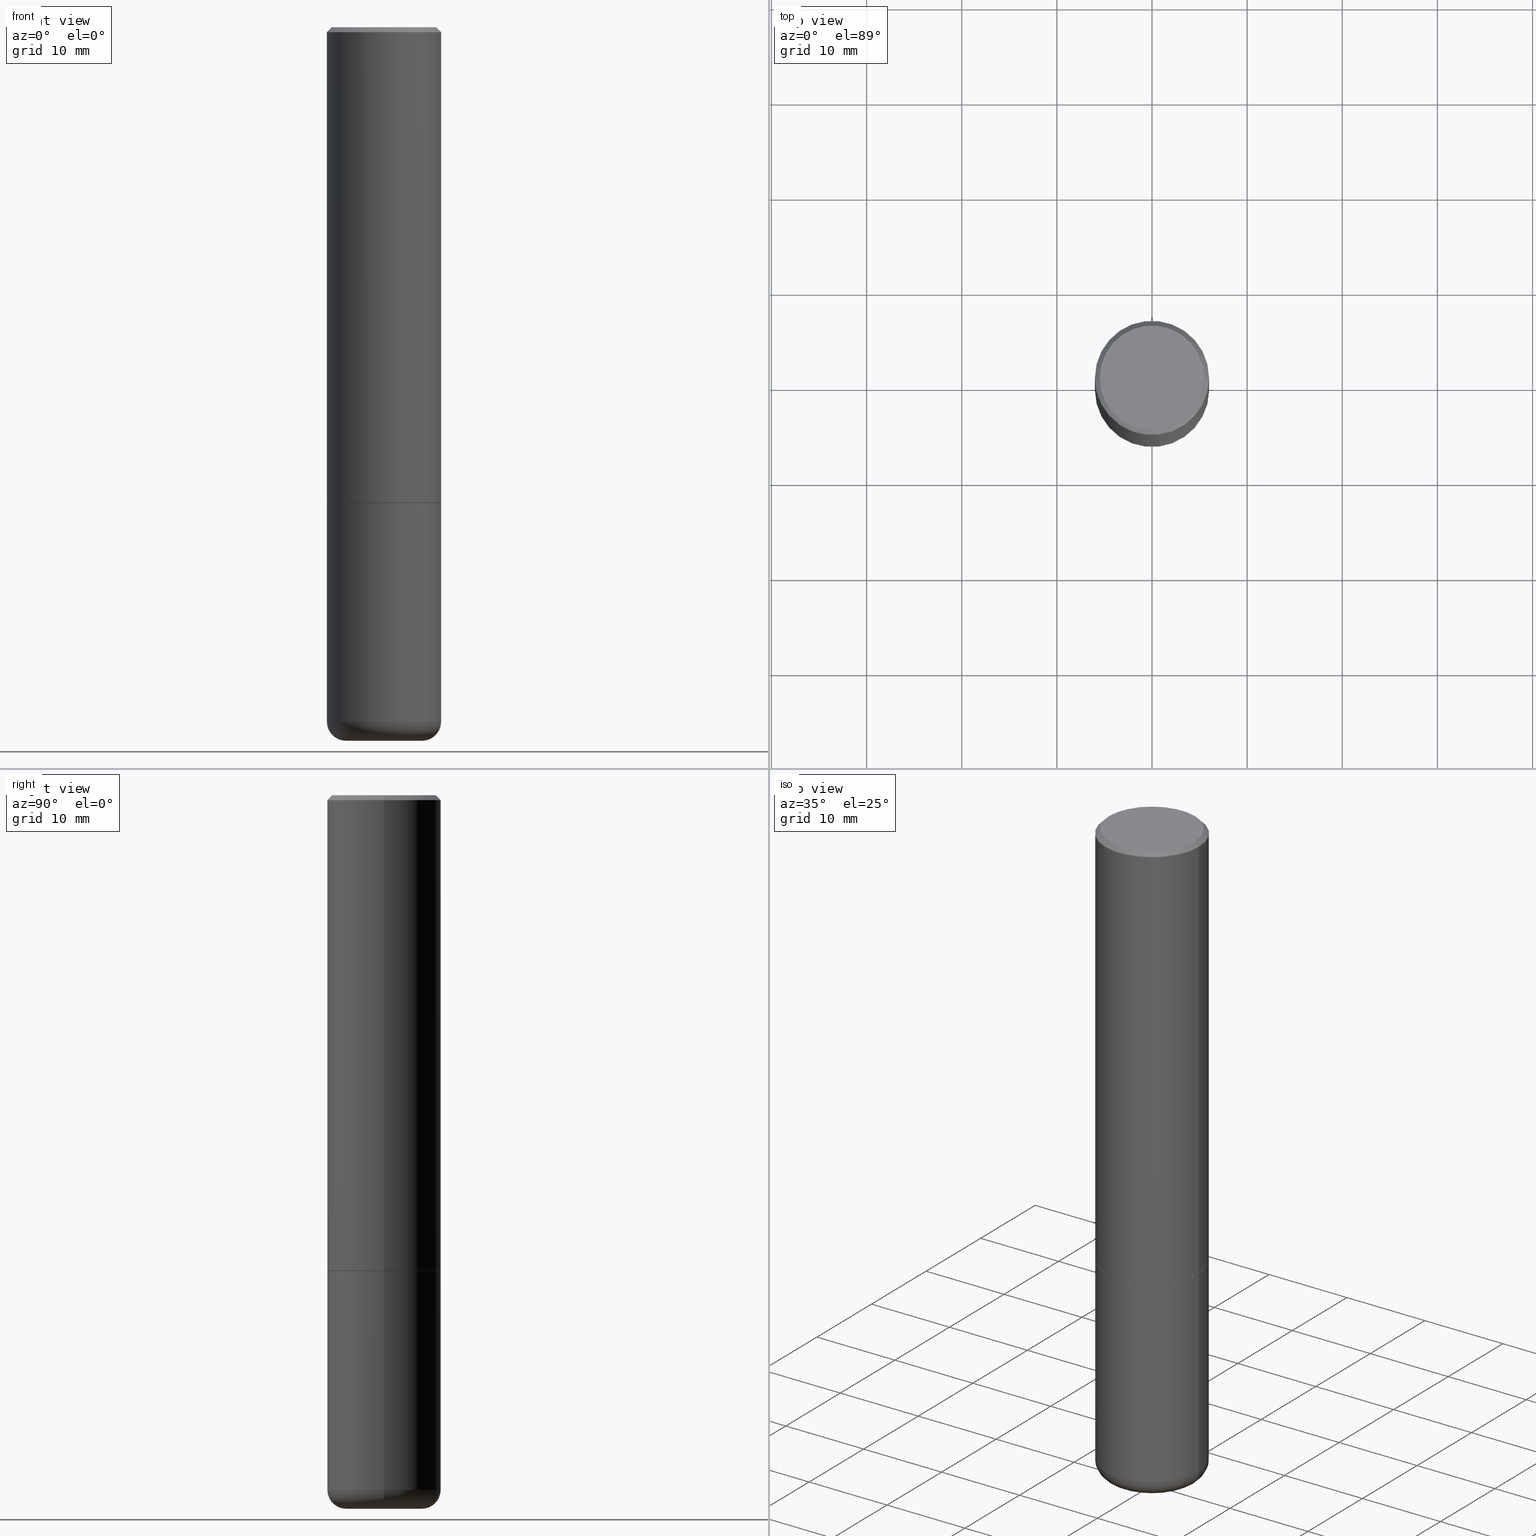
[diagram: canonical four-view strip — front | top / right | iso, engineering-drawing reading convention]
A machine part, canonical four-view strip (front | top / right | iso — engineering-drawing reading convention). The complete STEP part file that produces these views, byte-faithful:
ISO-10303-21;
HEADER;
FILE_DESCRIPTION (( 'STEP AP203' ),
    '1' );
FILE_NAME ('42683.STEP',
    '2024-03-04T01:27:10',
    ( '' ),
    ( '' ),
    'SwSTEP 2.0',
    'SolidWorks 2023',
    '' );
FILE_SCHEMA (( 'CONFIG_CONTROL_DESIGN' ));
ENDSEC;

DATA;
#1 = DIRECTION ( 'NONE',  ( 0.7071067811866078578, -2.468850131082888544E-15, 0.7071067811864871766 ) ) ;
#2 = AXIS2_PLACEMENT_3D ( 'NONE', #147, #84, #40 ) ;
#3 = ORIENTED_EDGE ( 'NONE', *, *, #385, .T. ) ;
#4 = DATE_AND_TIME ( #282, #222 ) ;
#5 = DIRECTION ( 'NONE',  ( -2.445468806185136597E-29, 3.491481338843145583E-15, 1.000000000000000000 ) ) ;
#6 = VECTOR ( 'NONE', #168, 39.37007874015748143 ) ;
#7 = CIRCLE ( 'NONE', #409, 0.07869999999999993667 ) ;
#8 = ORIENTED_EDGE ( 'NONE', *, *, #29, .T. ) ;
#9 = DIRECTION ( 'NONE',  ( -2.445468806185136597E-29, 3.491481338843145583E-15, 1.000000000000000000 ) ) ;
#10 = DATE_AND_TIME ( #284, #311 ) ;
#11 = DIRECTION ( 'NONE',  ( 1.000000000000000000, -6.982962677686268288E-15, 0.000000000000000000 ) ) ;
#12 = CARTESIAN_POINT ( 'NONE',  ( -0.2362000000000001321, 1.678301941865357577E-15, -1.161852468318209457E-29 ) ) ;
#13 = AXIS2_PLACEMENT_3D ( 'NONE', #320, #5, #124 ) ;
#14 = CARTESIAN_POINT ( 'NONE',  ( 1.509716530915769140E-15, 0.2161999999999997535, -6.353399157350757782E-16 ) ) ;
#15 = DIRECTION ( 'NONE',  ( -1.000000000000000000, 6.982962677686265922E-15, -4.876176775795935793E-29 ) ) ;
#16 = ORIENTED_EDGE ( 'NONE', *, *, #279, .F. ) ;
#17 = EDGE_CURVE ( 'NONE', #175, #137, #136, .T. ) ;
#18 = DIRECTION ( 'NONE',  ( 2.438088387897960049E-29, -3.491481338843145188E-15, -1.000000000000000000 ) ) ;
#19 = AXIS2_PLACEMENT_3D ( 'NONE', #22, #380, #86 ) ;
#20 = CARTESIAN_POINT ( 'NONE',  ( 4.813905344975440714E-29, -6.872981015512730918E-15, -1.968499999999999694 ) ) ;
#21 =( LENGTH_UNIT ( ) NAMED_UNIT ( * ) SI_UNIT ( $, .METRE. ) );
#22 = CARTESIAN_POINT ( 'NONE',  ( 0.000000000000000000, 0.000000000000000000, 0.000000000000000000 ) ) ;
#23 = CARTESIAN_POINT ( 'NONE',  ( 0.000000000000000000, 0.000000000000000000, 0.000000000000000000 ) ) ;
#24 = VERTEX_POINT ( 'NONE', #294 ) ;
#25 = FACE_OUTER_BOUND ( 'NONE', #317, .T. ) ;
#26 = CIRCLE ( 'NONE', #117, 0.2361999999999999933 ) ;
#27 = DIRECTION ( 'NONE',  ( -2.445468806185136877E-29, 3.491481338843145188E-15, 1.000000000000000000 ) ) ;
#28 = ORIENTED_EDGE ( 'NONE', *, *, #17, .F. ) ;
#29 = EDGE_CURVE ( 'NONE', #24, #391, #145, .T. ) ;
#30 = EDGE_LOOP ( 'NONE', ( #78, #94, #156, #181 ) ) ;
#31 = DIRECTION ( 'NONE',  ( 1.000000000000000000, -6.982962677686266711E-15, 0.000000000000000000 ) ) ;
#32 = ADVANCED_FACE ( 'NONE', ( #355 ), #106, .T. ) ;
#33 = APPROVAL_STATUS ( 'not_yet_approved' ) ;
#34 = CIRCLE ( 'NONE', #199, 0.07869999999999993667 ) ;
#35 = DIRECTION ( 'NONE',  ( -2.445468806185136597E-29, 3.491481338843145583E-15, 1.000000000000000000 ) ) ;
#36 = CONICAL_SURFACE ( 'NONE', #304, 0.2351999999999999924, 0.7853981633975336552 ) ;
#37 = FACE_OUTER_BOUND ( 'NONE', #378, .T. ) ;
#38 = DIRECTION ( 'NONE',  ( -0.7071067811866078578, 7.493145998870571886E-15, 0.7071067811864871766 ) ) ;
#39 = EDGE_CURVE ( 'NONE', #372, #41, #316, .T. ) ;
#40 = DIRECTION ( 'NONE',  ( 1.000000000000000000, -6.982962677686265922E-15, 0.000000000000000000 ) ) ;
#41 = VERTEX_POINT ( 'NONE', #246 ) ;
#42 = ORIENTED_EDGE ( 'NONE', *, *, #210, .T. ) ;
#43 = PLANE ( 'NONE',  #248 ) ;
#44 = ORIENTED_EDGE ( 'NONE', *, *, #39, .F. ) ;
#45 = DIRECTION ( 'NONE',  ( -2.445468806185136877E-29, 3.491481338843145188E-15, 1.000000000000000000 ) ) ;
#46 = ORIENTED_EDGE ( 'NONE', *, *, #144, .T. ) ;
#47 = APPROVAL_PERSON_ORGANIZATION ( #202, #418, #123 ) ;
#48 = EDGE_CURVE ( 'NONE', #391, #175, #159, .T. ) ;
#49 = DIRECTION ( 'NONE',  ( 1.000000000000000000, -6.982962677686267499E-15, 4.881916136609867620E-29 ) ) ;
#50 = CC_DESIGN_PERSON_AND_ORGANIZATION_ASSIGNMENT ( #361, #66, ( #108 ) ) ;
#51 = CARTESIAN_POINT ( 'NONE',  ( 4.813905344975440714E-29, -6.872981015512730918E-15, -1.968499999999999694 ) ) ;
#52 = LINE ( 'NONE', #416, #366 ) ;
#53 = APPROVAL_ROLE ( '' ) ;
#54 = DIRECTION ( 'NONE',  ( 0.000000000000000000, 0.000000000000000000, 1.000000000000000000 ) ) ;
#55 = DIRECTION ( 'NONE',  ( 1.000000000000000000, -6.982962677686265133E-15, 0.000000000000000000 ) ) ;
#56 = ORIENTED_EDGE ( 'NONE', *, *, #48, .F. ) ;
#57 = CIRCLE ( 'NONE', #280, 0.2361999999999999933 ) ;
#58 = EDGE_CURVE ( 'NONE', #417, #309, #207, .T. ) ;
#59 = EDGE_CURVE ( 'NONE', #342, #313, #189, .T. ) ;
#60 = ADVANCED_BREP_SHAPE_REPRESENTATION ( '42683', ( #299, #300, #255 ), #142 ) ;
#61 = PERSON_AND_ORGANIZATION ( #321, #68 ) ;
#62 = COORDINATED_UNIVERSAL_TIME_OFFSET ( 5, 0, .BEHIND. ) ;
#63 = APPROVAL_STATUS ( 'not_yet_approved' ) ;
#64 = DESIGN_CONTEXT ( 'detailed design', #139, 'design' ) ;
#65 = DIRECTION ( 'NONE',  ( 2.445468806185136597E-29, -3.491481338843145583E-15, -1.000000000000000000 ) ) ;
#66 = PERSON_AND_ORGANIZATION_ROLE ( 'design_supplier' ) ;
#67 = ADVANCED_FACE ( 'NONE', ( #37 ), #171, .F. ) ;
#68 = ORGANIZATION ( 'UNSPECIFIED', 'UNSPECIFIED', '' ) ;
#69 = DIRECTION ( 'NONE',  ( 1.000000000000000000, -6.982962677686265922E-15, 0.000000000000000000 ) ) ;
#70 = CARTESIAN_POINT ( 'NONE',  ( -0.2351999999999999924, -5.201784501004975532E-15, -1.968499999999999694 ) ) ;
#71 = FACE_OUTER_BOUND ( 'NONE', #235, .T. ) ;
#72 = LINE ( 'NONE', #243, #220 ) ;
#73 = DIRECTION ( 'NONE',  ( -1.000000000000000000, 6.982962677686265922E-15, -4.876176775795935793E-29 ) ) ;
#74 = DIRECTION ( 'NONE',  ( 1.000000000000000000, -6.982962677686268288E-15, 0.000000000000000000 ) ) ;
#75 = ADVANCED_FACE ( 'NONE', ( #240 ), #216, .T. ) ;
#76 = AXIS2_PLACEMENT_3D ( 'NONE', #395, #101, #15 ) ;
#77 = LINE ( 'NONE', #397, #6 ) ;
#78 = ORIENTED_EDGE ( 'NONE', *, *, #226, .F. ) ;
#79 = VECTOR ( 'NONE', #27, 39.37007874015748143 ) ;
#80 = FACE_OUTER_BOUND ( 'NONE', #289, .T. ) ;
#81 = EDGE_CURVE ( 'NONE', #313, #293, #364, .T. ) ;
#82 = DIRECTION ( 'NONE',  ( -2.445468806185136877E-29, 3.491481338843145188E-15, 1.000000000000000000 ) ) ;
#83 = ORIENTED_EDGE ( 'NONE', *, *, #337, .T. ) ;
#84 = DIRECTION ( 'NONE',  ( -2.445468806185136597E-29, 3.491481338843145583E-15, 1.000000000000000000 ) ) ;
#85 = ADVANCED_FACE ( 'NONE', ( #71 ), #192, .T. ) ;
#86 = DIRECTION ( 'NONE',  ( 1.000000000000000000, -6.982962677686266711E-15, 4.876176775795936353E-29 ) ) ;
#87 = CARTESIAN_POINT ( 'NONE',  ( -5.845567920277230523E-45, 8.345921754130504540E-31, 2.390366994456230070E-16 ) ) ;
#88 = VECTOR ( 'NONE', #38, 39.37007874015748143 ) ;
#89 = CARTESIAN_POINT ( 'NONE',  ( 7.028521895856700897E-29, -1.003486651596908519E-14, -2.874099999999999877 ) ) ;
#90 = CC_DESIGN_PERSON_AND_ORGANIZATION_ASSIGNMENT ( #286, #98, ( #344 ) ) ;
#91 = CLOSED_SHELL ( 'NONE', ( #85, #257, #308, #32, #75, #341 ) ) ;
#92 = CONICAL_SURFACE ( 'NONE', #164, 0.2351999999999999924, 0.7853981633975336552 ) ;
#93 = CALENDAR_DATE ( 2024, 3, 3 ) ;
#94 = ORIENTED_EDGE ( 'NONE', *, *, #81, .T. ) ;
#95 = APPROVAL ( #307, 'UNSPECIFIED' ) ;
#96 = COORDINATED_UNIVERSAL_TIME_OFFSET ( 5, 0, .BEHIND. ) ;
#97 = EDGE_LOOP ( 'NONE', ( #296, #266, #392, #232 ) ) ;
#98 = PERSON_AND_ORGANIZATION_ROLE ( 'classification_officer' ) ;
#99 = DIRECTION ( 'NONE',  ( 1.000000000000000000, -6.982962677686261977E-15, 0.000000000000000000 ) ) ;
#100 = CONICAL_SURFACE ( 'NONE', #326, 0.2361999999999999933, 0.7853981633974468357 ) ;
#101 = DIRECTION ( 'NONE',  ( 2.438088387897960049E-29, -3.491481338843145188E-15, -1.000000000000000000 ) ) ;
#102 = ORIENTED_EDGE ( 'NONE', *, *, #370, .T. ) ;
#103 = FACE_OUTER_BOUND ( 'NONE', #254, .T. ) ;
#104 = ORIENTED_EDGE ( 'NONE', *, *, #163, .F. ) ;
#105 = FACE_OUTER_BOUND ( 'NONE', #414, .T. ) ;
#106 = CYLINDRICAL_SURFACE ( 'NONE', #19, 0.2361999999999999933 ) ;
#107 = FACE_OUTER_BOUND ( 'NONE', #411, .T. ) ;
#108 = PRODUCT_DEFINITION_FORMATION_WITH_SPECIFIED_SOURCE ( 'ANY', '', #169, .NOT_KNOWN. ) ;
#109 = AXIS2_PLACEMENT_3D ( 'NONE', #373, #155, #31 ) ;
#110 = EDGE_CURVE ( 'NONE', #303, #153, #260, .T. ) ;
#111 = DIRECTION ( 'NONE',  ( 1.000000000000000000, -6.982962677686268288E-15, 0.000000000000000000 ) ) ;
#112 = DIRECTION ( 'NONE',  ( -1.000000000000000000, 7.105427357600997914E-15, 0.000000000000000000 ) ) ;
#113 = ORIENTED_EDGE ( 'NONE', *, *, #408, .F. ) ;
#114 = DIRECTION ( 'NONE',  ( 1.000000000000000000, -6.982962677686265133E-15, 0.000000000000000000 ) ) ;
#115 = CC_DESIGN_APPROVAL ( #403, ( #108 ) ) ;
#116 = ADVANCED_FACE ( 'NONE', ( #379 ), #398, .T. ) ;
#117 = AXIS2_PLACEMENT_3D ( 'NONE', #406, #306, #348 ) ;
#118 =( NAMED_UNIT ( * ) PLANE_ANGLE_UNIT ( ) SI_UNIT ( $, .RADIAN. ) );
#119 = VECTOR ( 'NONE', #318, 39.37007874015748143 ) ;
#120 = CARTESIAN_POINT ( 'NONE',  ( -0.1575000000000000011, -8.915761707146927585E-15, -2.874099999999999877 ) ) ;
#121 = CC_DESIGN_PERSON_AND_ORGANIZATION_ASSIGNMENT ( #61, #315, ( #347 ) ) ;
#122 = DIRECTION ( 'NONE',  ( -1.000000000000000000, 6.982962677686266711E-15, 0.000000000000000000 ) ) ;
#123 = APPROVAL_ROLE ( '' ) ;
#124 = DIRECTION ( 'NONE',  ( 1.000000000000000000, -6.982962677686266711E-15, 4.876176775795936353E-29 ) ) ;
#125 = CARTESIAN_POINT ( 'NONE',  ( 0.2351999999999999924, -8.515373837304542218E-15, -1.968499999999999694 ) ) ;
#126 = EDGE_LOOP ( 'NONE', ( #148, #252, #3, #285 ) ) ;
#127 = TOROIDAL_SURFACE ( 'NONE', #388, 0.1575000000000000011, 0.07869999999999995055 ) ;
#128 = AXIS2_PLACEMENT_3D ( 'NONE', #51, #217, #305 ) ;
#129 = EDGE_CURVE ( 'NONE', #391, #24, #187, .T. ) ;
#130 = ORIENTED_EDGE ( 'NONE', *, *, #279, .T. ) ;
#131 = DIRECTION ( 'NONE',  ( -6.982962677686266711E-15, -1.000000000000000000, 3.491481338843145583E-15 ) ) ;
#132 = ORIENTED_EDGE ( 'NONE', *, *, #370, .F. ) ;
#133 = CARTESIAN_POINT ( 'NONE',  ( 0.2361999999999999933, -1.690279253850498771E-15, -0.02000000000000005246 ) ) ;
#134 = APPROVAL_DATE_TIME ( #325, #403 ) ;
#135 = DIRECTION ( 'NONE',  ( -2.445468806185136597E-29, 3.491481338843145583E-15, 1.000000000000000000 ) ) ;
#136 = CIRCLE ( 'NONE', #390, 0.2362000000000002431 ) ;
#137 = VERTEX_POINT ( 'NONE', #278 ) ;
#138 = CARTESIAN_POINT ( 'NONE',  ( 4.890937612370285420E-31, -6.982962677686308865E-17, -0.02000000000000005246 ) ) ;
#139 = APPLICATION_CONTEXT ( 'configuration controlled 3d designs of mechanical parts and assemblies' ) ;
#140 = CARTESIAN_POINT ( 'NONE',  ( -0.2361999999999999933, 1.579546157692633030E-15, -0.02000000000000005246 ) ) ;
#141 = EDGE_LOOP ( 'NONE', ( #349, #104 ) ) ;
#142 =( GEOMETRIC_REPRESENTATION_CONTEXT ( 3 ) GLOBAL_UNCERTAINTY_ASSIGNED_CONTEXT ( ( #415 ) ) GLOBAL_UNIT_ASSIGNED_CONTEXT ( ( #251, #118, #376 ) ) REPRESENTATION_CONTEXT ( 'NONE', 'WORKASPACE' ) );
#143 = LENGTH_MEASURE_WITH_UNIT ( LENGTH_MEASURE( 0.02539999999999999897 ), #21 );
#144 = EDGE_CURVE ( 'NONE', #137, #175, #214, .T. ) ;
#145 = CIRCLE ( 'NONE', #375, 0.2351999999999999924 ) ;
#146 = AXIS2_PLACEMENT_3D ( 'NONE', #413, #179, #114 ) ;
#147 = CARTESIAN_POINT ( 'NONE',  ( 4.811459876169255671E-29, -6.869489534173887122E-15, -1.967499999999999805 ) ) ;
#148 = ORIENTED_EDGE ( 'NONE', *, *, #210, .F. ) ;
#149 = PERSON_AND_ORGANIZATION_ROLE ( 'design_owner' ) ;
#150 = ORIENTED_EDGE ( 'NONE', *, *, #29, .F. ) ;
#151 = DIRECTION ( 'NONE',  ( -2.445468806185136597E-29, 3.491481338843145583E-15, 1.000000000000000000 ) ) ;
#152 = CARTESIAN_POINT ( 'NONE',  ( 0.2351999999999999924, -8.515373837304542218E-15, -1.968499999999999694 ) ) ;
#153 = VERTEX_POINT ( 'NONE', #333 ) ;
#154 = EDGE_CURVE ( 'NONE', #41, #372, #26, .T. ) ;
#155 = DIRECTION ( 'NONE',  ( -2.445468806185136597E-29, 3.491481338843145583E-15, 1.000000000000000000 ) ) ;
#156 = ORIENTED_EDGE ( 'NONE', *, *, #193, .T. ) ;
#157 = CC_DESIGN_DATE_AND_TIME_ASSIGNMENT ( #4, #237, ( #347 ) ) ;
#158 = COORDINATED_UNIVERSAL_TIME_OFFSET ( 5, 0, .BEHIND. ) ;
#159 = LINE ( 'NONE', #125, #209 ) ;
#160 = SECURITY_CLASSIFICATION_LEVEL ( 'unclassified' ) ;
#161 = EDGE_CURVE ( 'NONE', #175, #293, #185, .T. ) ;
#162 = CALENDAR_DATE ( 2024, 3, 3 ) ;
#163 = EDGE_CURVE ( 'NONE', #153, #303, #166, .T. ) ;
#164 = AXIS2_PLACEMENT_3D ( 'NONE', #407, #173, #74 ) ;
#165 = CC_DESIGN_SECURITY_CLASSIFICATION ( #344, ( #108 ) ) ;
#166 = CIRCLE ( 'NONE', #245, 0.1575000000000000011 ) ;
#167 = CARTESIAN_POINT ( 'NONE',  ( 7.028521895856700897E-29, -1.003486651596908519E-14, -2.874099999999999877 ) ) ;
#168 = DIRECTION ( 'NONE',  ( -2.445468806185136877E-29, 3.491481338843145188E-15, 1.000000000000000000 ) ) ;
#169 = PRODUCT ( '42683', '42683', '', ( #386 ) ) ;
#170 = CALENDAR_DATE ( 2024, 3, 3 ) ;
#171 = PLANE ( 'NONE',  #256 ) ;
#172 = CARTESIAN_POINT ( 'NONE',  ( 7.220980290903470182E-29, -1.030964609733603853E-14, -2.952799999999999869 ) ) ;
#173 = DIRECTION ( 'NONE',  ( -2.445468806185136597E-29, 3.491481338843145583E-15, 1.000000000000000000 ) ) ;
#174 = LINE ( 'NONE', #12, #368 ) ;
#175 = VERTEX_POINT ( 'NONE', #234 ) ;
#176 = CARTESIAN_POINT ( 'NONE',  ( 7.028521895856700897E-29, -1.003486651596908519E-14, -2.874099999999999877 ) ) ;
#177 = DIMENSIONAL_EXPONENTS ( 1.000000000000000000, 0.000000000000000000, 0.000000000000000000, 0.000000000000000000, 0.000000000000000000, 0.000000000000000000, 0.000000000000000000 ) ;
#178 = LOCAL_TIME ( 20, 27, 10.00000000000000000, #250 ) ;
#179 = DIRECTION ( 'NONE',  ( -2.445468806185136597E-29, 3.491481338843145583E-15, 1.000000000000000000 ) ) ;
#180 = AXIS2_PLACEMENT_3D ( 'NONE', #346, #283, #394 ) ;
#181 = ORIENTED_EDGE ( 'NONE', *, *, #337, .F. ) ;
#182 = APPROVAL_DATE_TIME ( #225, #95 ) ;
#183 = EDGE_CURVE ( 'NONE', #24, #137, #200, .T. ) ;
#184 = DIRECTION ( 'NONE',  ( 1.000000000000000000, 0.000000000000000000, 0.000000000000000000 ) ) ;
#185 = LINE ( 'NONE', #188, #79 ) ;
#186 = ORIENTED_EDGE ( 'NONE', *, *, #161, .F. ) ;
#187 = CIRCLE ( 'NONE', #343, 0.2351999999999999924 ) ;
#188 = CARTESIAN_POINT ( 'NONE',  ( 0.2362000000000001321, -1.649375784469497117E-15, 1.151752954443000789E-29 ) ) ;
#189 = CIRCLE ( 'NONE', #360, 0.2161999999999997535 ) ;
#190 = ORIENTED_EDGE ( 'NONE', *, *, #161, .T. ) ;
#191 = AXIS2_PLACEMENT_3D ( 'NONE', #167, #264, #371 ) ;
#192 = CYLINDRICAL_SURFACE ( 'NONE', #13, 0.2361999999999999933 ) ;
#193 = EDGE_CURVE ( 'NONE', #293, #281, #57, .T. ) ;
#194 = ORIENTED_EDGE ( 'NONE', *, *, #183, .T. ) ;
#195 = PERSON_AND_ORGANIZATION ( #321, #68 ) ;
#196 = EDGE_LOOP ( 'NONE', ( #228, #194, #28, #56 ) ) ;
#197 = CC_DESIGN_PERSON_AND_ORGANIZATION_ASSIGNMENT ( #195, #401, ( #108 ) ) ;
#198 = ORIENTED_EDGE ( 'NONE', *, *, #39, .T. ) ;
#199 = AXIS2_PLACEMENT_3D ( 'NONE', #120, #374, #112 ) ;
#200 = LINE ( 'NONE', #70, #88 ) ;
#201 = ORIENTED_EDGE ( 'NONE', *, *, #385, .F. ) ;
#202 = PERSON_AND_ORGANIZATION ( #321, #68 ) ;
#203 = ORIENTED_EDGE ( 'NONE', *, *, #154, .T. ) ;
#204 = DIRECTION ( 'NONE',  ( 1.000000000000000000, -6.982962677686275388E-15, 0.000000000000000000 ) ) ;
#205 = FACE_OUTER_BOUND ( 'NONE', #196, .T. ) ;
#206 = ORIENTED_EDGE ( 'NONE', *, *, #110, .T. ) ;
#207 = CIRCLE ( 'NONE', #400, 0.2361999999999999933 ) ;
#208 = DIRECTION ( 'NONE',  ( -1.000000000000000000, 6.982962677686266711E-15, 0.000000000000000000 ) ) ;
#209 = VECTOR ( 'NONE', #1, 39.37007874015748143 ) ;
#210 = EDGE_CURVE ( 'NONE', #417, #41, #77, .T. ) ;
#211 = CARTESIAN_POINT ( 'NONE',  ( 4.811459876169255671E-29, -6.869489534173887122E-15, -1.967499999999999805 ) ) ;
#212 = CARTESIAN_POINT ( 'NONE',  ( 0.2361999999999999655, -1.168424230043858014E-14, -2.874099999999999877 ) ) ;
#213 = CARTESIAN_POINT ( 'NONE',  ( 0.2361999999999999933, -8.522356799982226655E-15, -1.968499999999999694 ) ) ;
#214 = CIRCLE ( 'NONE', #2, 0.2362000000000002431 ) ;
#215 = APPLICATION_PROTOCOL_DEFINITION ( 'international standard', 'config_control_design', 1994, #139 ) ;
#216 = TOROIDAL_SURFACE ( 'NONE', #191, 0.1575000000000000011, 0.07869999999999995055 ) ;
#217 = DIRECTION ( 'NONE',  ( -2.438088387897960049E-29, 3.491481338843145188E-15, 1.000000000000000000 ) ) ;
#218 = ORIENTED_EDGE ( 'NONE', *, *, #408, .T. ) ;
#219 = CARTESIAN_POINT ( 'NONE',  ( 4.813905344975440714E-29, -6.872981015512730918E-15, -1.968499999999999694 ) ) ;
#220 = VECTOR ( 'NONE', #330, 39.37007874015748143 ) ;
#221 = DIRECTION ( 'NONE',  ( -2.445468806185136597E-29, 3.491481338843145583E-15, 1.000000000000000000 ) ) ;
#222 = LOCAL_TIME ( 20, 27, 10.00000000000000000, #158 ) ;
#223 = CIRCLE ( 'NONE', #146, 0.2361999999999999933 ) ;
#224 = ORIENTED_EDGE ( 'NONE', *, *, #59, .F. ) ;
#225 = DATE_AND_TIME ( #93, #178 ) ;
#226 = EDGE_CURVE ( 'NONE', #313, #342, #291, .T. ) ;
#227 = DIRECTION ( 'NONE',  ( 1.000000000000000000, -6.982962677686265133E-15, 0.000000000000000000 ) ) ;
#228 = ORIENTED_EDGE ( 'NONE', *, *, #129, .T. ) ;
#229 = PERSON_AND_ORGANIZATION ( #321, #68 ) ;
#230 = CARTESIAN_POINT ( 'NONE',  ( 4.813905344975440714E-29, -6.872981015512730918E-15, -1.968499999999999694 ) ) ;
#231 = APPROVAL_PERSON_ORGANIZATION ( #233, #403, #258 ) ;
#232 = ORIENTED_EDGE ( 'NONE', *, *, #58, .F. ) ;
#233 = PERSON_AND_ORGANIZATION ( #321, #68 ) ;
#234 = CARTESIAN_POINT ( 'NONE',  ( 0.2362000000000002431, -8.518865318643385225E-15, -1.967499999999999805 ) ) ;
#235 = EDGE_LOOP ( 'NONE', ( #218, #42, #44, #201 ) ) ;
#236 = CC_DESIGN_APPROVAL ( #95, ( #347 ) ) ;
#237 = DATE_TIME_ROLE ( 'creation_date' ) ;
#238 = DIRECTION ( 'NONE',  ( -2.445468806185136597E-29, 3.491481338843145583E-15, 1.000000000000000000 ) ) ;
#239 = APPROVAL_DATE_TIME ( #268, #418 ) ;
#240 = FACE_OUTER_BOUND ( 'NONE', #97, .T. ) ;
#241 = DIRECTION ( 'NONE',  ( -1.000000000000000000, 6.982962677686265922E-15, -4.876176775795935793E-29 ) ) ;
#242 = ORIENTED_EDGE ( 'NONE', *, *, #226, .T. ) ;
#243 = CARTESIAN_POINT ( 'NONE',  ( -0.2361999999999999933, 1.579546157692633030E-15, -0.02000000000000005246 ) ) ;
#244 = ADVANCED_FACE ( 'NONE', ( #369 ), #247, .T. ) ;
#245 = AXIS2_PLACEMENT_3D ( 'NONE', #352, #354, #99 ) ;
#246 = CARTESIAN_POINT ( 'NONE',  ( -0.2361999999999999933, -6.775621823875550476E-15, -1.968499999999999694 ) ) ;
#247 = CYLINDRICAL_SURFACE ( 'NONE', #312, 0.2362000000000001321 ) ;
#248 = AXIS2_PLACEMENT_3D ( 'NONE', #172, #18, #241 ) ;
#249 = CC_DESIGN_DATE_AND_TIME_ASSIGNMENT ( #10, #319, ( #344 ) ) ;
#250 = COORDINATED_UNIVERSAL_TIME_OFFSET ( 5, 0, .BEHIND. ) ;
#251 =( CONVERSION_BASED_UNIT ( 'INCH', #143 ) LENGTH_UNIT ( ) NAMED_UNIT ( #177 ) );
#252 = ORIENTED_EDGE ( 'NONE', *, *, #58, .T. ) ;
#253 = DIRECTION ( 'NONE',  ( -2.445468806185136597E-29, 3.491481338843145583E-15, 1.000000000000000000 ) ) ;
#254 = EDGE_LOOP ( 'NONE', ( #332, #8, #276, #298 ) ) ;
#255 = AXIS2_PLACEMENT_3D ( 'NONE', #275, #54, #184 ) ;
#256 = AXIS2_PLACEMENT_3D ( 'NONE', #14, #402, #73 ) ;
#257 = ADVANCED_FACE ( 'NONE', ( #80 ), #127, .T. ) ;
#258 = APPROVAL_ROLE ( '' ) ;
#259 = ORIENTED_EDGE ( 'NONE', *, *, #129, .F. ) ;
#260 = CIRCLE ( 'NONE', #180, 0.1575000000000000011 ) ;
#261 = PLANE ( 'NONE',  #76 ) ;
#262 = PRODUCT_DEFINITION_SHAPE ( 'NONE', 'NONE',  #347 ) ;
#263 = ADVANCED_FACE ( 'NONE', ( #205 ), #36, .T. ) ;
#264 = DIRECTION ( 'NONE',  ( -2.445468806185136597E-29, 3.491481338843145583E-15, 1.000000000000000000 ) ) ;
#265 = CARTESIAN_POINT ( 'NONE',  ( 4.890937612370285420E-31, -6.982962677686308865E-17, -0.02000000000000005246 ) ) ;
#266 = ORIENTED_EDGE ( 'NONE', *, *, #163, .T. ) ;
#267 = CIRCLE ( 'NONE', #109, 0.2361999999999999933 ) ;
#268 = DATE_AND_TIME ( #162, #367 ) ;
#269 = CARTESIAN_POINT ( 'NONE',  ( 0.1575000000000000011, -1.113468313770467030E-14, -2.874099999999999877 ) ) ;
#270 = CARTESIAN_POINT ( 'NONE',  ( 4.813905344975440714E-29, -6.872981015512730918E-15, -1.968499999999999694 ) ) ;
#271 = CARTESIAN_POINT ( 'NONE',  ( -0.2161999999999997535, 1.544631344304201775E-15, 2.390366994456123573E-16 ) ) ;
#272 = CC_DESIGN_PERSON_AND_ORGANIZATION_ASSIGNMENT ( #229, #149, ( #169 ) ) ;
#273 = ORIENTED_EDGE ( 'NONE', *, *, #310, .F. ) ;
#274 = DIRECTION ( 'NONE',  ( -2.445468806185136597E-29, 3.491481338843145583E-15, 1.000000000000000000 ) ) ;
#275 = CARTESIAN_POINT ( 'NONE',  ( 0.000000000000000000, 0.000000000000000000, 0.000000000000000000 ) ) ;
#276 = ORIENTED_EDGE ( 'NONE', *, *, #48, .T. ) ;
#277 = CYLINDRICAL_SURFACE ( 'NONE', #412, 0.2362000000000001321 ) ;
#278 = CARTESIAN_POINT ( 'NONE',  ( -0.2362000000000002431, -1.791357638610016055E-15, -1.967499999999999805 ) ) ;
#279 = EDGE_CURVE ( 'NONE', #137, #281, #174, .T. ) ;
#280 = AXIS2_PLACEMENT_3D ( 'NONE', #138, #328, #357 ) ;
#281 = VERTEX_POINT ( 'NONE', #140 ) ;
#282 = CALENDAR_DATE ( 2024, 3, 3 ) ;
#283 = DIRECTION ( 'NONE',  ( -2.445468806185136597E-29, 3.491481338843145583E-15, 1.000000000000000000 ) ) ;
#284 = CALENDAR_DATE ( 2024, 3, 3 ) ;
#285 = ORIENTED_EDGE ( 'NONE', *, *, #154, .F. ) ;
#286 = PERSON_AND_ORGANIZATION ( #321, #68 ) ;
#287 = AXIS2_PLACEMENT_3D ( 'NONE', #295, #238, #49 ) ;
#288 = LOCAL_TIME ( 20, 27, 10.00000000000000000, #62 ) ;
#289 = EDGE_LOOP ( 'NONE', ( #206, #396, #113, #273 ) ) ;
#290 = AXIS2_PLACEMENT_3D ( 'NONE', #219, #253, #227 ) ;
#291 = CIRCLE ( 'NONE', #287, 0.2161999999999997535 ) ;
#292 = ADVANCED_FACE ( 'NONE', ( #103 ), #92, .T. ) ;
#293 = VERTEX_POINT ( 'NONE', #133 ) ;
#294 = CARTESIAN_POINT ( 'NONE',  ( -0.2351999999999999924, -5.196486046656752341E-15, -1.968499999999999694 ) ) ;
#295 = CARTESIAN_POINT ( 'NONE',  ( -5.845567920277230523E-45, 8.345921754130504540E-31, 2.390366994456230070E-16 ) ) ;
#296 = ORIENTED_EDGE ( 'NONE', *, *, #377, .F. ) ;
#297 = CARTESIAN_POINT ( 'NONE',  ( 0.000000000000000000, 0.000000000000000000, 0.000000000000000000 ) ) ;
#298 = ORIENTED_EDGE ( 'NONE', *, *, #144, .F. ) ;
#299 = MANIFOLD_SOLID_BREP ( 'Body-Move/Copy2[1]', #91 ) ;
#300 = MANIFOLD_SOLID_BREP ( 'Body-Move/Copy2[2]', #410 ) ;
#301 = FACE_OUTER_BOUND ( 'NONE', #141, .T. ) ;
#302 = DIRECTION ( 'NONE',  ( 1.000000000000000000, -6.982962677686266711E-15, 4.876176775795936353E-29 ) ) ;
#303 = VERTEX_POINT ( 'NONE', #405 ) ;
#304 = AXIS2_PLACEMENT_3D ( 'NONE', #270, #135, #11 ) ;
#305 = DIRECTION ( 'NONE',  ( 1.000000000000000000, -6.982962677686265922E-15, 4.876176775795935793E-29 ) ) ;
#306 = DIRECTION ( 'NONE',  ( -2.445468806185136597E-29, 3.491481338843145583E-15, 1.000000000000000000 ) ) ;
#307 = APPROVAL_STATUS ( 'not_yet_approved' ) ;
#308 = ADVANCED_FACE ( 'NONE', ( #105 ), #261, .F. ) ;
#309 = VERTEX_POINT ( 'NONE', #212 ) ;
#310 = EDGE_CURVE ( 'NONE', #303, #309, #7, .T. ) ;
#311 = LOCAL_TIME ( 20, 27, 10.00000000000000000, #322 ) ;
#312 = AXIS2_PLACEMENT_3D ( 'NONE', #297, #363, #331 ) ;
#313 = VERTEX_POINT ( 'NONE', #365 ) ;
#314 = CARTESIAN_POINT ( 'NONE',  ( 0.2361999999999999933, -1.690279253850498771E-15, -0.02000000000000005246 ) ) ;
#315 = PERSON_AND_ORGANIZATION_ROLE ( 'creator' ) ;
#316 = CIRCLE ( 'NONE', #290, 0.2361999999999999933 ) ;
#317 = EDGE_LOOP ( 'NONE', ( #16, #46, #190, #132 ) ) ;
#318 = DIRECTION ( 'NONE',  ( 0.7071067811865464625, -7.319954787623252890E-15, -0.7071067811865485719 ) ) ;
#319 = DATE_TIME_ROLE ( 'classification_date' ) ;
#320 = CARTESIAN_POINT ( 'NONE',  ( 0.000000000000000000, 0.000000000000000000, 0.000000000000000000 ) ) ;
#321 = PERSON ( 'UNSPECIFIED', 'UNSPECIFIED', 'UNSPECIFIED', ('UNSPECIFIED'), ('UNSPECIFIED'), ('UNSPECIFIED') ) ;
#322 = COORDINATED_UNIVERSAL_TIME_OFFSET ( 5, 0, .BEHIND. ) ;
#323 = EDGE_LOOP ( 'NONE', ( #359, #224, #83, #102 ) ) ;
#324 = ADVANCED_FACE ( 'NONE', ( #404 ), #100, .T. ) ;
#325 = DATE_AND_TIME ( #170, #288 ) ;
#326 = AXIS2_PLACEMENT_3D ( 'NONE', #265, #362, #208 ) ;
#327 = DIRECTION ( 'NONE',  ( 1.000000000000000000, -6.982962677686267499E-15, 4.881916136609867620E-29 ) ) ;
#328 = DIRECTION ( 'NONE',  ( -2.445468806185136597E-29, 3.491481338843145583E-15, 1.000000000000000000 ) ) ;
#329 = ORIENTED_EDGE ( 'NONE', *, *, #59, .T. ) ;
#330 = DIRECTION ( 'NONE',  ( -0.7071067811865464625, 2.468850131082245622E-15, -0.7071067811865485719 ) ) ;
#331 = DIRECTION ( 'NONE',  ( 1.000000000000000000, -6.982962677686266711E-15, 4.876176775795936353E-29 ) ) ;
#332 = ORIENTED_EDGE ( 'NONE', *, *, #183, .F. ) ;
#333 = CARTESIAN_POINT ( 'NONE',  ( -0.1575000000000000011, -8.773552931308804860E-15, -2.952799999999999869 ) ) ;
#334 = DIRECTION ( 'NONE',  ( 1.000000000000000000, -6.982962677686266711E-15, 4.883557194083113462E-29 ) ) ;
#335 = EDGE_LOOP ( 'NONE', ( #381, #130, #399, #186 ) ) ;
#336 = PLANE ( 'NONE',  #128 ) ;
#337 = EDGE_CURVE ( 'NONE', #342, #281, #72, .T. ) ;
#338 = DIRECTION ( 'NONE',  ( -2.445468806185136597E-29, 3.491481338843145583E-15, 1.000000000000000000 ) ) ;
#339 = PERSON_AND_ORGANIZATION ( #321, #68 ) ;
#340 = APPLICATION_CONTEXT ( 'configuration controlled 3d designs of mechanical parts and assemblies' ) ;
#341 = ADVANCED_FACE ( 'NONE', ( #301 ), #43, .T. ) ;
#342 = VERTEX_POINT ( 'NONE', #271 ) ;
#343 = AXIS2_PLACEMENT_3D ( 'NONE', #230, #151, #387 ) ;
#344 = SECURITY_CLASSIFICATION ( '', '', #160 ) ;
#345 = AXIS2_PLACEMENT_3D ( 'NONE', #356, #65, #122 ) ;
#346 = CARTESIAN_POINT ( 'NONE',  ( 7.220980290903470182E-29, -1.030964609733603853E-14, -2.952799999999999869 ) ) ;
#347 = PRODUCT_DEFINITION ( 'UNKNOWN', '', #108, #64 ) ;
#348 = DIRECTION ( 'NONE',  ( 1.000000000000000000, -6.982962677686265133E-15, 0.000000000000000000 ) ) ;
#349 = ORIENTED_EDGE ( 'NONE', *, *, #110, .F. ) ;
#350 = CARTESIAN_POINT ( 'NONE',  ( -0.2361999999999999655, -8.356564574103728795E-15, -2.874099999999999877 ) ) ;
#351 = SHAPE_DEFINITION_REPRESENTATION ( #262, #60 ) ;
#352 = CARTESIAN_POINT ( 'NONE',  ( 7.220980290903470182E-29, -1.030964609733603853E-14, -2.952799999999999869 ) ) ;
#353 = ADVANCED_FACE ( 'NONE', ( #107 ), #336, .F. ) ;
#354 = DIRECTION ( 'NONE',  ( -2.445468806185136597E-29, 3.491481338843145583E-15, 1.000000000000000000 ) ) ;
#355 = FACE_OUTER_BOUND ( 'NONE', #126, .T. ) ;
#356 = CARTESIAN_POINT ( 'NONE',  ( 4.890937612370285420E-31, -6.982962677686308865E-17, -0.02000000000000005246 ) ) ;
#357 = DIRECTION ( 'NONE',  ( 1.000000000000000000, -6.982962677686266711E-15, 0.000000000000000000 ) ) ;
#358 = APPROVAL_PERSON_ORGANIZATION ( #339, #95, #53 ) ;
#359 = ORIENTED_EDGE ( 'NONE', *, *, #81, .F. ) ;
#360 = AXIS2_PLACEMENT_3D ( 'NONE', #87, #221, #327 ) ;
#361 = PERSON_AND_ORGANIZATION ( #321, #68 ) ;
#362 = DIRECTION ( 'NONE',  ( 2.445468806185136597E-29, -3.491481338843145583E-15, -1.000000000000000000 ) ) ;
#363 = DIRECTION ( 'NONE',  ( -2.445468806185136597E-29, 3.491481338843145583E-15, 1.000000000000000000 ) ) ;
#364 = LINE ( 'NONE', #314, #119 ) ;
#365 = CARTESIAN_POINT ( 'NONE',  ( 0.2161999999999997535, -1.586759460484351002E-15, 2.390366994456338538E-16 ) ) ;
#366 = VECTOR ( 'NONE', #82, 39.37007874015748143 ) ;
#367 = LOCAL_TIME ( 20, 27, 10.00000000000000000, #96 ) ;
#368 = VECTOR ( 'NONE', #45, 39.37007874015748143 ) ;
#369 = FACE_OUTER_BOUND ( 'NONE', #335, .T. ) ;
#370 = EDGE_CURVE ( 'NONE', #281, #293, #267, .T. ) ;
#371 = DIRECTION ( 'NONE',  ( 1.000000000000000000, -6.982962677686266711E-15, 4.883557194083113462E-29 ) ) ;
#372 = VERTEX_POINT ( 'NONE', #213 ) ;
#373 = CARTESIAN_POINT ( 'NONE',  ( 4.890937612370285420E-31, -6.982962677686308865E-17, -0.02000000000000005246 ) ) ;
#374 = DIRECTION ( 'NONE',  ( 7.105427357601001859E-15, 1.000000000000000000, -3.491481338843145583E-15 ) ) ;
#375 = AXIS2_PLACEMENT_3D ( 'NONE', #20, #274, #111 ) ;
#376 =( NAMED_UNIT ( * ) SI_UNIT ( $, .STERADIAN. ) SOLID_ANGLE_UNIT ( ) );
#377 = EDGE_CURVE ( 'NONE', #153, #417, #34, .T. ) ;
#378 = EDGE_LOOP ( 'NONE', ( #329, #242 ) ) ;
#379 = FACE_OUTER_BOUND ( 'NONE', #323, .T. ) ;
#380 = DIRECTION ( 'NONE',  ( -2.445468806185136597E-29, 3.491481338843145583E-15, 1.000000000000000000 ) ) ;
#381 = ORIENTED_EDGE ( 'NONE', *, *, #17, .T. ) ;
#382 = CC_DESIGN_APPROVAL ( #418, ( #344 ) ) ;
#383 = DIRECTION ( 'NONE',  ( -2.445468806185136597E-29, 3.491481338843145583E-15, 1.000000000000000000 ) ) ;
#384 = APPLICATION_PROTOCOL_DEFINITION ( 'international standard', 'config_control_design', 1994, #340 ) ;
#385 = EDGE_CURVE ( 'NONE', #309, #372, #52, .T. ) ;
#386 = MECHANICAL_CONTEXT ( 'NONE', #340, 'mechanical' ) ;
#387 = DIRECTION ( 'NONE',  ( 1.000000000000000000, -6.982962677686268288E-15, 0.000000000000000000 ) ) ;
#388 = AXIS2_PLACEMENT_3D ( 'NONE', #176, #9, #334 ) ;
#389 = ADVANCED_FACE ( 'NONE', ( #25 ), #277, .T. ) ;
#390 = AXIS2_PLACEMENT_3D ( 'NONE', #211, #35, #69 ) ;
#391 = VERTEX_POINT ( 'NONE', #152 ) ;
#392 = ORIENTED_EDGE ( 'NONE', *, *, #310, .T. ) ;
#393 = PRODUCT_RELATED_PRODUCT_CATEGORY ( 'detail', '', ( #169 ) ) ;
#394 = DIRECTION ( 'NONE',  ( 1.000000000000000000, -6.982962677686261977E-15, 0.000000000000000000 ) ) ;
#395 = CARTESIAN_POINT ( 'NONE',  ( 4.813905344975440714E-29, -6.872981015512730918E-15, -1.968499999999999694 ) ) ;
#396 = ORIENTED_EDGE ( 'NONE', *, *, #377, .T. ) ;
#397 = CARTESIAN_POINT ( 'NONE',  ( -0.2361999999999999933, 1.678301941865356591E-15, -1.161852468318208757E-29 ) ) ;
#398 = CONICAL_SURFACE ( 'NONE', #345, 0.2361999999999999933, 0.7853981633974468357 ) ;
#399 = ORIENTED_EDGE ( 'NONE', *, *, #193, .F. ) ;
#400 = AXIS2_PLACEMENT_3D ( 'NONE', #89, #383, #55 ) ;
#401 = PERSON_AND_ORGANIZATION_ROLE ( 'creator' ) ;
#402 = DIRECTION ( 'NONE',  ( 2.438088387897960049E-29, -3.491481338843145188E-15, -1.000000000000000000 ) ) ;
#403 = APPROVAL ( #63, 'UNSPECIFIED' ) ;
#404 = FACE_OUTER_BOUND ( 'NONE', #30, .T. ) ;
#405 = CARTESIAN_POINT ( 'NONE',  ( 0.1575000000000000011, -1.140946271907162522E-14, -2.952799999999999869 ) ) ;
#406 = CARTESIAN_POINT ( 'NONE',  ( 4.813905344975440714E-29, -6.872981015512730918E-15, -1.968499999999999694 ) ) ;
#407 = CARTESIAN_POINT ( 'NONE',  ( 4.813905344975440714E-29, -6.872981015512730918E-15, -1.968499999999999694 ) ) ;
#408 = EDGE_CURVE ( 'NONE', #309, #417, #223, .T. ) ;
#409 = AXIS2_PLACEMENT_3D ( 'NONE', #269, #131, #204 ) ;
#410 = CLOSED_SHELL ( 'NONE', ( #263, #244, #324, #116, #389, #292, #353, #67 ) ) ;
#411 = EDGE_LOOP ( 'NONE', ( #259, #150 ) ) ;
#412 = AXIS2_PLACEMENT_3D ( 'NONE', #23, #338, #302 ) ;
#413 = CARTESIAN_POINT ( 'NONE',  ( 7.028521895856700897E-29, -1.003486651596908519E-14, -2.874099999999999877 ) ) ;
#414 = EDGE_LOOP ( 'NONE', ( #198, #203 ) ) ;
#415 = UNCERTAINTY_MEASURE_WITH_UNIT (LENGTH_MEASURE( 1.000000000000000082E-05 ), #251, 'distance_accuracy_value', 'NONE');
#416 = CARTESIAN_POINT ( 'NONE',  ( 0.2361999999999999933, -1.649375784469496131E-15, 1.151752954443000088E-29 ) ) ;
#417 = VERTEX_POINT ( 'NONE', #350 ) ;
#418 = APPROVAL ( #33, 'UNSPECIFIED' ) ;
ENDSEC;
END-ISO-10303-21;
